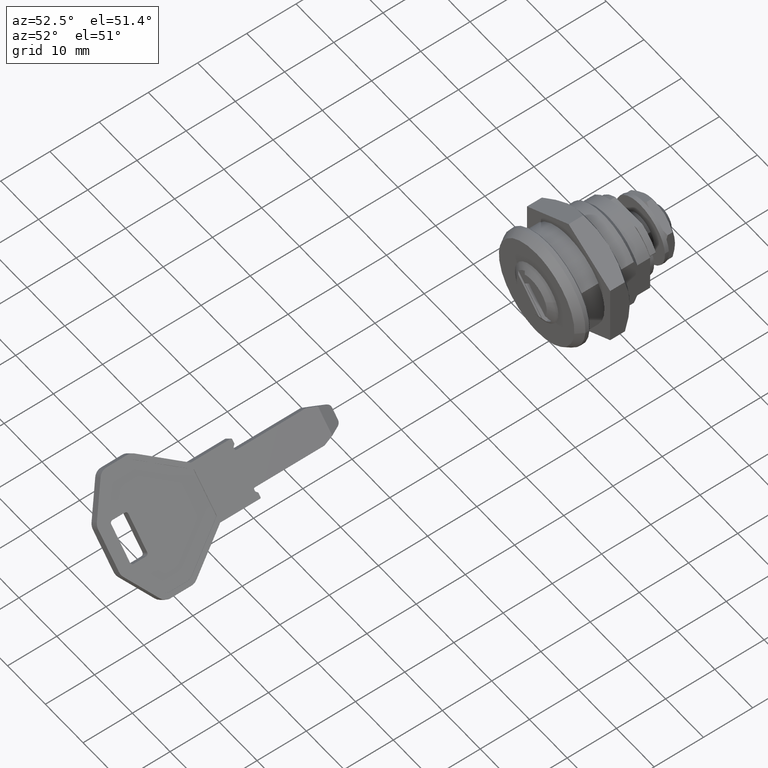
[diagram: clean part render]
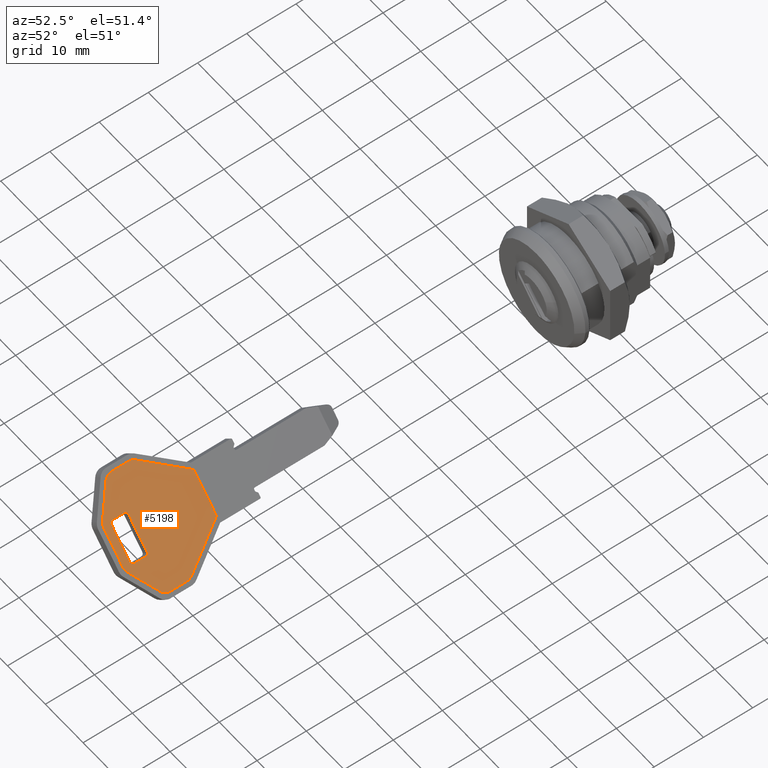
[diagram: same view with one face highlighted and labeled with its STEP entity id]
A machine part, auxiliary view. The second image highlights one B-rep face of the part: STEP entity #5198.
In plain terms, the highlighted face is a freeform B-spline surface patch.
Its self-contained STEP definition (entity closure, byte-faithful):
#4965=CARTESIAN_POINT('',(-7.918817966154010,-89.950550483460134,9.191610150506879));
#4966=CARTESIAN_POINT('',(-7.918817966154008,-69.415417055063855,9.191610150506879));
#4967=CARTESIAN_POINT('',(9.191610567760664,-89.950550483460134,-7.918818383407795));
#4968=CARTESIAN_POINT('',(9.191610567760666,-69.415417055063855,-7.918818383407795));
#4969=B_SPLINE_SURFACE_WITH_KNOTS('',1,1,((#4965,#4967),(#4966,#4968)),.UNSPECIFIED.,.F.,.F.,.U.,(2,2),(2,2),(0.0,20.535133428396279),(0.0,24.197800504805439),.UNSPECIFIED.);
#4970=CARTESIAN_POINT('',(-7.141778367757794,-83.412432744109793,8.414570552110680));
#4971=VERTEX_POINT('',#4970);
#4972=CARTESIAN_POINT('',(-7.141778367757794,-80.017676412576307,8.414570552110680));
#4973=VERTEX_POINT('',#4972);
#4974=CARTESIAN_POINT('',(-7.141778367757794,-83.412432744109793,8.414570552110680));
#4975=CARTESIAN_POINT('',(-7.141778367757794,-80.017676412576307,8.414570552110680));
#4976=QUASI_UNIFORM_CURVE('',1,(#4974,#4975),.UNSPECIFIED.,.F.,.U.);
#4977=EDGE_CURVE('',#4971,#4973,#4976,.T.);
#4978=ORIENTED_EDGE('',*,*,#4977,.F.);
#4979=CARTESIAN_POINT('',(-6.512029356715204,-85.076533332785402,7.784821541068090));
#4980=VERTEX_POINT('',#4979);
#4981=CARTESIAN_POINT('',(-7.141778367757794,-83.412432744109793,8.414570552110680));
#4982=CARTESIAN_POINT('',(-7.141778367757794,-84.482800261085700,8.414570552110680));
#4983=CARTESIAN_POINT('',(-6.512029356715205,-85.076533332785402,7.784821541068091));
#4991=(BOUNDED_CURVE()B_SPLINE_CURVE(2,(#4981,#4982,#4983),.UNSPECIFIED.,.F.,.U.)CURVE()GEOMETRIC_REPRESENTATION_ITEM()QUASI_UNIFORM_CURVE()RATIONAL_B_SPLINE_CURVE((1.0,0.881674598767959,1.0))REPRESENTATION_ITEM(''));
#4992=EDGE_CURVE('',#4971,#4980,#4991,.T.);
#4993=ORIENTED_EDGE('',*,*,#4992,.T.);
#4994=CARTESIAN_POINT('',(-2.687764786893298,-88.682084608322000,3.960556971246185));
#4995=VERTEX_POINT('',#4994);
#4996=CARTESIAN_POINT('',(-2.687764786893298,-88.682084608322000,3.960556971246185));
#4997=CARTESIAN_POINT('',(-6.512029356715204,-85.076533332785402,7.784821541068090));
#4998=QUASI_UNIFORM_CURVE('',1,(#4996,#4997),.UNSPECIFIED.,.F.,.U.);
#4999=EDGE_CURVE('',#4995,#4980,#4998,.T.);
#5000=ORIENTED_EDGE('',*,*,#4999,.F.);
#5001=CARTESIAN_POINT('',(-1.903300259766089,-89.017984019646192,3.176092444118976));
#5002=VERTEX_POINT('',#5001);
#5003=CARTESIAN_POINT('',(-2.687764786893293,-88.682084608321986,3.960556971246179));
#5004=CARTESIAN_POINT('',(-2.331489665674694,-89.017984019646306,3.604281850027580));
#5005=CARTESIAN_POINT('',(-1.903300259766089,-89.017984019646306,3.176092444118976));
#5013=(BOUNDED_CURVE()B_SPLINE_CURVE(2,(#5003,#5004,#5005),.UNSPECIFIED.,.F.,.U.)CURVE()GEOMETRIC_REPRESENTATION_ITEM()QUASI_UNIFORM_CURVE()RATIONAL_B_SPLINE_CURVE((1.0,0.957092026489052,1.0))REPRESENTATION_ITEM(''));
#5014=EDGE_CURVE('',#4995,#5002,#5013,.T.);
#5015=ORIENTED_EDGE('',*,*,#5014,.T.);
#5016=CARTESIAN_POINT('',(3.176092444227515,-89.017984019646192,-1.903300259874628));
#5017=VERTEX_POINT('',#5016);
#5018=CARTESIAN_POINT('',(3.176092444227515,-89.017984019646192,-1.903300259874628));
#5019=CARTESIAN_POINT('',(-1.903300259766089,-89.017984019646192,3.176092444118976));
#5020=QUASI_UNIFORM_CURVE('',1,(#5018,#5019),.UNSPECIFIED.,.F.,.U.);
#5021=EDGE_CURVE('',#5017,#5002,#5020,.T.);
#5022=ORIENTED_EDGE('',*,*,#5021,.F.);
#5023=CARTESIAN_POINT('',(3.960556971354388,-88.682084608321802,-2.687764787001501));
#5024=VERTEX_POINT('',#5023);
#5025=CARTESIAN_POINT('',(3.176092444227515,-89.017984019646207,-1.903300259874628));
#5026=CARTESIAN_POINT('',(3.604281850135987,-89.017984019646221,-2.331489665783100));
#5027=CARTESIAN_POINT('',(3.960556971354517,-88.682084608322086,-2.687764787001630));
#5035=(BOUNDED_CURVE()B_SPLINE_CURVE(2,(#5025,#5026,#5027),.UNSPECIFIED.,.F.,.U.)CURVE()GEOMETRIC_REPRESENTATION_ITEM()QUASI_UNIFORM_CURVE()RATIONAL_B_SPLINE_CURVE((1.0,0.957092026489077,1.0))REPRESENTATION_ITEM(''));
#5036=EDGE_CURVE('',#5017,#5024,#5035,.T.);
#5037=ORIENTED_EDGE('',*,*,#5036,.T.);
#5038=CARTESIAN_POINT('',(7.784821541068013,-85.076533332887905,-6.512029356715127));
#5039=VERTEX_POINT('',#5038);
#5040=CARTESIAN_POINT('',(7.784821541068013,-85.076533332887905,-6.512029356715127));
#5041=CARTESIAN_POINT('',(3.960556971354388,-88.682084608321802,-2.687764787001501));
#5042=QUASI_UNIFORM_CURVE('',1,(#5040,#5041),.UNSPECIFIED.,.F.,.U.);
#5043=EDGE_CURVE('',#5039,#5024,#5042,.T.);
#5044=ORIENTED_EDGE('',*,*,#5043,.F.);
#5045=CARTESIAN_POINT('',(8.414570552110675,-83.412432744212296,-7.141778367757789));
#5046=VERTEX_POINT('',#5045);
#5047=CARTESIAN_POINT('',(7.784821541068037,-85.076533332887962,-6.512029356715151));
#5048=CARTESIAN_POINT('',(8.414570552110675,-84.482800261188260,-7.141778367757789));
#5049=CARTESIAN_POINT('',(8.414570552110675,-83.412432744212296,-7.141778367757789));
#5057=(BOUNDED_CURVE()B_SPLINE_CURVE(2,(#5047,#5048,#5049),.UNSPECIFIED.,.F.,.U.)CURVE()GEOMETRIC_REPRESENTATION_ITEM()QUASI_UNIFORM_CURVE()RATIONAL_B_SPLINE_CURVE((1.0,0.881674598767949,1.0))REPRESENTATION_ITEM(''));
#5058=EDGE_CURVE('',#5039,#5046,#5057,.T.);
#5059=ORIENTED_EDGE('',*,*,#5058,.T.);
#5060=CARTESIAN_POINT('',(8.414570552110675,-80.017676412567198,-7.141778367757789));
#5061=VERTEX_POINT('',#5060);
#5062=CARTESIAN_POINT('',(8.414570552110675,-80.017676412567198,-7.141778367757789));
#5063=CARTESIAN_POINT('',(8.414570552110675,-83.412432744212296,-7.141778367757789));
#5064=QUASI_UNIFORM_CURVE('',1,(#5062,#5063),.UNSPECIFIED.,.F.,.U.);
#5065=EDGE_CURVE('',#5061,#5046,#5064,.T.);
#5066=ORIENTED_EDGE('',*,*,#5065,.F.);
#5067=CARTESIAN_POINT('',(8.131884437998094,-78.817971744925302,-6.859092253645208));
#5068=VERTEX_POINT('',#5067);
#5069=CARTESIAN_POINT('',(8.414570552110675,-80.017676412567297,-7.141778367757789));
#5070=CARTESIAN_POINT('',(8.414570552110677,-79.351214817314997,-7.141778367757789));
#5071=CARTESIAN_POINT('',(8.131884437998277,-78.817971744925103,-6.859092253645390));
#5079=(BOUNDED_CURVE()B_SPLINE_CURVE(2,(#5069,#5070,#5071),.UNSPECIFIED.,.F.,.U.)CURVE()GEOMETRIC_REPRESENTATION_ITEM()QUASI_UNIFORM_CURVE()RATIONAL_B_SPLINE_CURVE((1.0,0.948712477082200,1.0))REPRESENTATION_ITEM(''));
#5080=EDGE_CURVE('',#5061,#5068,#5079,.T.);
#5081=ORIENTED_EDGE('',*,*,#5080,.T.);
#5082=CARTESIAN_POINT('',(3.641722182522654,-70.347984019646304,-2.368929998169766));
#5083=VERTEX_POINT('',#5082);
#5084=CARTESIAN_POINT('',(3.641722182522654,-70.347984019646304,-2.368929998169766));
#5085=CARTESIAN_POINT('',(8.131884437998094,-78.817971744925302,-6.859092253645208));
#5086=QUASI_UNIFORM_CURVE('',1,(#5084,#5085),.UNSPECIFIED.,.F.,.U.);
#5087=EDGE_CURVE('',#5083,#5068,#5086,.T.);
#5088=ORIENTED_EDGE('',*,*,#5087,.F.);
#5089=CARTESIAN_POINT('',(-2.368929998165287,-70.347984019646205,3.641722182518175));
#5090=VERTEX_POINT('',#5089);
#5091=CARTESIAN_POINT('',(-2.368929998165287,-70.347984019646205,3.641722182518175));
#5092=CARTESIAN_POINT('',(3.641722182522654,-70.347984019646304,-2.368929998169766));
#5093=QUASI_UNIFORM_CURVE('',1,(#5091,#5092),.UNSPECIFIED.,.F.,.U.);
#5094=EDGE_CURVE('',#5090,#5083,#5093,.T.);
#5095=ORIENTED_EDGE('',*,*,#5094,.F.);
#5096=CARTESIAN_POINT('',(-6.859092253645409,-78.817971744934098,8.131884437998297));
#5097=VERTEX_POINT('',#5096);
#5098=CARTESIAN_POINT('',(-6.859092253645409,-78.817971744934098,8.131884437998297));
#5099=CARTESIAN_POINT('',(-2.368929998165287,-70.347984019646205,3.641722182518175));
#5100=QUASI_UNIFORM_CURVE('',1,(#5098,#5099),.UNSPECIFIED.,.F.,.U.);
#5101=EDGE_CURVE('',#5097,#5090,#5100,.T.);
#5102=ORIENTED_EDGE('',*,*,#5101,.F.);
#5103=CARTESIAN_POINT('',(-6.859092253645394,-78.817971744934113,8.131884437998281));
#5104=CARTESIAN_POINT('',(-7.141778367757794,-79.351214817324006,8.414570552110682));
#5105=CARTESIAN_POINT('',(-7.141778367757794,-80.017676412576307,8.414570552110680));
#5113=(BOUNDED_CURVE()B_SPLINE_CURVE(2,(#5103,#5104,#5105),.UNSPECIFIED.,.F.,.U.)CURVE()GEOMETRIC_REPRESENTATION_ITEM()QUASI_UNIFORM_CURVE()RATIONAL_B_SPLINE_CURVE((1.0,0.948712477082200,1.0))REPRESENTATION_ITEM(''));
#5114=EDGE_CURVE('',#5097,#4973,#5113,.T.);
#5115=ORIENTED_EDGE('',*,*,#5114,.T.);
#5116=EDGE_LOOP('',(#4978,#4993,#5000,#5015,#5022,#5037,#5044,#5059,#5066,#5081,#5088,#5095,#5102,#5115));
#5117=FACE_OUTER_BOUND('',#5116,.T.);
#5118=CARTESIAN_POINT('',(-2.192030984163281,-84.517984019656907,3.464823168516168));
#5119=VERTEX_POINT('',#5118);
#5120=CARTESIAN_POINT('',(-2.192030984149153,-87.017984019656311,3.464823168502040));
#5121=VERTEX_POINT('',#5120);
#5122=CARTESIAN_POINT('',(-2.192030984163281,-84.517984019656907,3.464823168516168));
#5123=CARTESIAN_POINT('',(-2.192030984149153,-87.017984019656311,3.464823168502040));
#5124=QUASI_UNIFORM_CURVE('',1,(#5122,#5123),.UNSPECIFIED.,.F.,.U.);
#5125=EDGE_CURVE('',#5119,#5121,#5124,.T.);
#5126=ORIENTED_EDGE('',*,*,#5125,.F.);
#5127=CARTESIAN_POINT('',(-1.838477599620918,-84.017984019646306,3.111269783973805));
#5128=VERTEX_POINT('',#5127);
#5129=CARTESIAN_POINT('',(-1.838477599620918,-84.017984019646306,3.111269783973805));
#5130=CARTESIAN_POINT('',(-1.890560101812244,-84.017875830785798,3.163352286165130));
#5131=CARTESIAN_POINT('',(-1.988819693285445,-84.049264009632694,3.261611877638330));
#5132=CARTESIAN_POINT('',(-2.107275795363889,-84.173443514521324,3.380067979716779));
#5133=CARTESIAN_POINT('',(-2.176986288001069,-84.337986073957339,3.449778472353952));
#5134=CARTESIAN_POINT('',(-2.192050056572682,-84.460719705804721,3.464842240925572));
#5135=CARTESIAN_POINT('',(-2.192030984163281,-84.517984019656907,3.464823168516168));
#5136=B_SPLINE_CURVE_WITH_KNOTS('',3,(#5129,#5130,#5131,#5132,#5133,#5134,#5135),.UNSPECIFIED.,.F.,.U.,(4,1,1,1,4),(0.000000517785214,0.220919928795361,0.417251437327422,0.613658140799262,0.785476941793095),.UNSPECIFIED.);
#5137=EDGE_CURVE('',#5128,#5119,#5136,.T.);
#5138=ORIENTED_EDGE('',*,*,#5137,.F.);
#5139=CARTESIAN_POINT('',(3.111269783966534,-84.017984019656197,-1.838477599613648));
#5140=VERTEX_POINT('',#5139);
#5141=CARTESIAN_POINT('',(3.111269783966534,-84.017984019656197,-1.838477599613648));
#5142=CARTESIAN_POINT('',(-1.838477599620918,-84.017984019646306,3.111269783973805));
#5143=QUASI_UNIFORM_CURVE('',1,(#5141,#5142),.UNSPECIFIED.,.F.,.U.);
#5144=EDGE_CURVE('',#5140,#5128,#5143,.T.);
#5145=ORIENTED_EDGE('',*,*,#5144,.F.);
#5146=CARTESIAN_POINT('',(3.464823168509070,-84.517984019656197,-2.192030984156183));
#5147=VERTEX_POINT('',#5146);
#5148=CARTESIAN_POINT('',(3.464823168509070,-84.517984019656197,-2.192030984156183));
#5149=CARTESIAN_POINT('',(3.464904685061001,-84.444328632888926,-2.192112500708115));
#5150=CARTESIAN_POINT('',(3.442694915652838,-84.305374601751140,-2.169902731299950));
#5151=CARTESIAN_POINT('',(3.354902571197826,-84.137836248540154,-2.082110386844940));
#5152=CARTESIAN_POINT('',(3.238546339558390,-84.039266105244920,-1.965754155205501));
#5153=CARTESIAN_POINT('',(3.151761347219428,-84.017955778357759,-1.878969162866543));
#5154=CARTESIAN_POINT('',(3.111269783966534,-84.017984019656197,-1.838477599613648));
#5155=B_SPLINE_CURVE_WITH_KNOTS('',3,(#5148,#5149,#5150,#5151,#5152,#5153,#5154),.UNSPECIFIED.,.F.,.U.,(4,1,1,1,4),(0.000000517786194,0.220919928793119,0.417251437322609,0.613658140791539,0.785476941782746),.UNSPECIFIED.);
#5156=EDGE_CURVE('',#5147,#5140,#5155,.T.);
#5157=ORIENTED_EDGE('',*,*,#5156,.F.);
#5158=CARTESIAN_POINT('',(3.464823168516162,-87.017984019659593,-2.192030984163276));
#5159=VERTEX_POINT('',#5158);
#5160=CARTESIAN_POINT('',(3.464823168516162,-87.017984019659593,-2.192030984163276));
#5161=CARTESIAN_POINT('',(3.464823168509070,-84.517984019656197,-2.192030984156183));
#5162=QUASI_UNIFORM_CURVE('',1,(#5160,#5161),.UNSPECIFIED.,.F.,.U.);
#5163=EDGE_CURVE('',#5159,#5147,#5162,.T.);
#5164=ORIENTED_EDGE('',*,*,#5163,.F.);
#5165=CARTESIAN_POINT('',(3.111269783973697,-87.517984019676291,-1.838477599620811));
#5166=VERTEX_POINT('',#5165);
#5167=CARTESIAN_POINT('',(3.111269783973697,-87.517984019676291,-1.838477599620811));
#5168=CARTESIAN_POINT('',(3.186557571698226,-87.518451663566054,-1.913765387345341));
#5169=CARTESIAN_POINT('',(3.313408695321687,-87.458345991445896,-2.040616510968798));
#5170=CARTESIAN_POINT('',(3.437216469901216,-87.255083144989243,-2.164424285548337));
#5171=CARTESIAN_POINT('',(3.464949152590276,-87.099839073537652,-2.192156968237379));
#5172=CARTESIAN_POINT('',(3.464823168516162,-87.017984019659593,-2.192030984163276));
#5173=B_SPLINE_CURVE_WITH_KNOTS('',3,(#5167,#5168,#5169,#5170,#5171,#5172),.UNSPECIFIED.,.F.,.U.,(4,1,1,4),(0.000000517781818,0.319126103031394,0.540001830726002,0.785476941799357),.UNSPECIFIED.);
#5174=EDGE_CURVE('',#5166,#5159,#5173,.T.);
#5175=ORIENTED_EDGE('',*,*,#5174,.F.);
#5176=CARTESIAN_POINT('',(-1.838477599618476,-87.517984019656296,3.111269783971362));
#5177=VERTEX_POINT('',#5176);
#5178=CARTESIAN_POINT('',(-1.838477599618476,-87.517984019656296,3.111269783971362));
#5179=CARTESIAN_POINT('',(3.111269783973697,-87.517984019676291,-1.838477599620811));
#5180=QUASI_UNIFORM_CURVE('',1,(#5178,#5179),.UNSPECIFIED.,.F.,.U.);
#5181=EDGE_CURVE('',#5177,#5166,#5180,.T.);
#5182=ORIENTED_EDGE('',*,*,#5181,.F.);
#5183=CARTESIAN_POINT('',(-2.192030984149153,-87.017984019656311,3.464823168502039));
#5184=CARTESIAN_POINT('',(-2.192030984149154,-87.517984019656311,3.464823168502040));
#5185=CARTESIAN_POINT('',(-1.838477599606688,-87.517984019656311,3.111269783959575));
#5193=(BOUNDED_CURVE()B_SPLINE_CURVE(2,(#5183,#5184,#5185),.UNSPECIFIED.,.F.,.U.)CURVE()GEOMETRIC_REPRESENTATION_ITEM()QUASI_UNIFORM_CURVE()RATIONAL_B_SPLINE_CURVE((1.0,0.707106781186548,1.0))REPRESENTATION_ITEM(''));
#5194=EDGE_CURVE('',#5121,#5177,#5193,.T.);
#5195=ORIENTED_EDGE('',*,*,#5194,.F.);
#5196=EDGE_LOOP('',(#5126,#5138,#5145,#5157,#5164,#5175,#5182,#5195));
#5197=FACE_BOUND('',#5196,.T.);
#5198=ADVANCED_FACE('',(#5117,#5197),#4969,.F.);